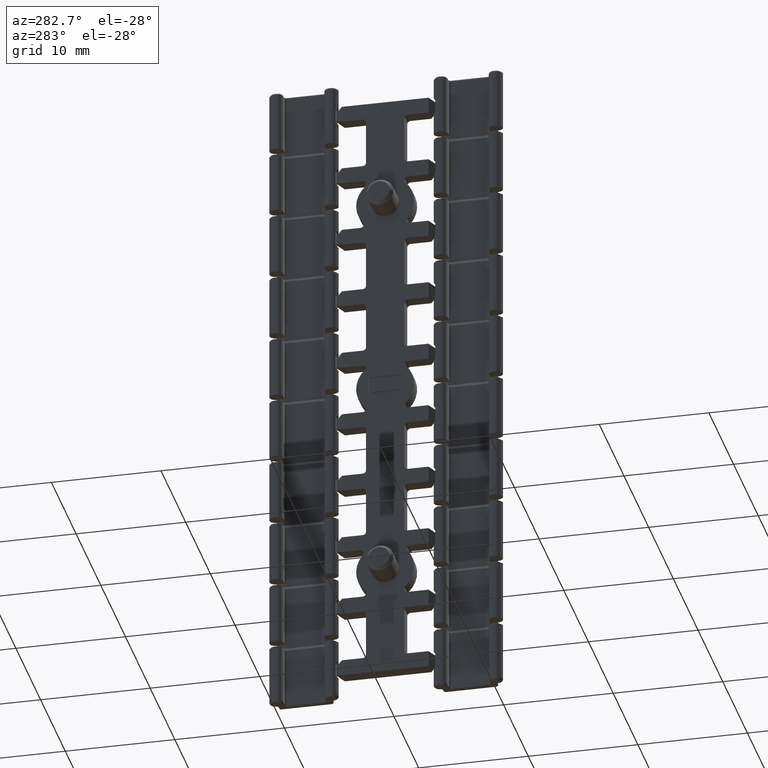
[diagram: clean part render]
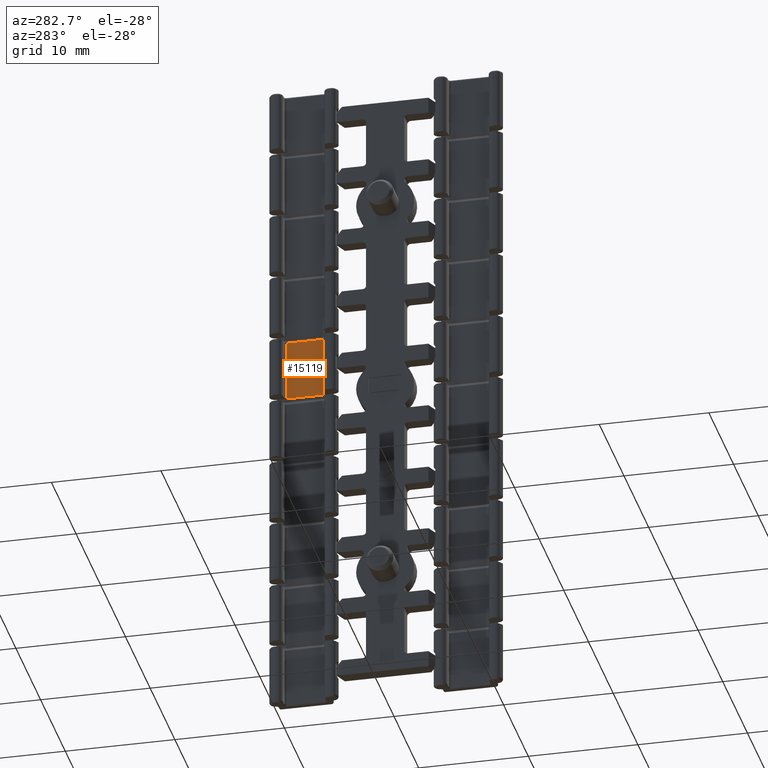
[diagram: same view with one face highlighted and labeled with its STEP entity id]
A machine part, auxiliary view. The second image highlights one B-rep face of the part: STEP entity #15119.
In plain terms, the highlighted planar face has unit normal (-1, -0, 0).
Its self-contained STEP definition (entity closure, byte-faithful):
#1936 = FACE_OUTER_BOUND ( 'NONE', #15117, .T. ) ;
#1940 = DIRECTION ( 'NONE',  ( -1.582853921550299100E-028, 6.123233995720649900E-017, -1.000000000000000000 ) ) ;
#1941 = VECTOR ( 'NONE', #1940, 1000.000000000000000 ) ;
#1942 = CARTESIAN_POINT ( 'NONE',  ( 47.81237692440182500, 109.2850000000000000, -34.85380093145749900 ) ) ;
#1957 = CARTESIAN_POINT ( 'NONE',  ( 47.81237692440060300, 157.4680127006220100, -34.85380093145749900 ) ) ;
#1959 = LINE ( 'NONE', #1942, #1941 ) ;
#1960 = AXIS2_PLACEMENT_3D ( 'NONE', #1957, #2014, #2013 ) ;
#1962 = LINE ( 'NONE', #2010, #2009 ) ;
#1970 = PLANE ( 'NONE',  #1960 ) ;
#1976 = CARTESIAN_POINT ( 'NONE',  ( 47.81237692440191700, 105.9350000000000000, 16.72119906854229800 ) ) ;
#2008 = DIRECTION ( 'NONE',  ( 1.551882100571859600E-028, 6.123233995752850200E-017, 1.000000000000000000 ) ) ;
#2009 = VECTOR ( 'NONE', #2008, 1000.000000000000000 ) ;
#2010 = CARTESIAN_POINT ( 'NONE',  ( 47.81237692440190300, 105.9350000000000000, 16.72119906854230500 ) ) ;
#2013 = DIRECTION ( 'NONE',  ( 2.529041108016070100E-014, -1.000000000000000000, 0.0000000000000000000 ) ) ;
#2014 = DIRECTION ( 'NONE',  ( -1.000000000000000000, -2.529041108016070100E-014, 1.567368011061120000E-028 ) ) ;
#2044 = LINE ( 'NONE', #2094, #2093 ) ;
#2092 = DIRECTION ( 'NONE',  ( -1.124819836994257000E-032, -1.000000000000000000, -6.123233995719869600E-017 ) ) ;
#2093 = VECTOR ( 'NONE', #2092, 1000.000000000000000 ) ;
#2094 = CARTESIAN_POINT ( 'NONE',  ( 47.81237692440180400, 107.6600000000000100, 16.72119906854230100 ) ) ;
#15098 = ORIENTED_EDGE ( 'NONE', *, *, #15168, .F. ) ;
#15099 = EDGE_CURVE ( 'NONE', #20540, #17731, #1959, .T. ) ;
#15115 = ORIENTED_EDGE ( 'NONE', *, *, #15099, .T. ) ;
#15116 = ORIENTED_EDGE ( 'NONE', *, *, #15120, .T. ) ;
#15117 = EDGE_LOOP ( 'NONE', ( #15122, #15116, #15098, #15115 ) ) ;
#15119 = ADVANCED_FACE ( 'NONE', ( #1936 ), #1970, .T. ) ;
#15120 = EDGE_CURVE ( 'NONE', #19477, #15123, #1962, .T. ) ;
#15122 = ORIENTED_EDGE ( 'NONE', *, *, #19536, .F. ) ;
#15123 = VERTEX_POINT ( 'NONE', #1976 ) ;
#15168 = EDGE_CURVE ( 'NONE', #20540, #15123, #2044, .T. ) ;
#17731 = VERTEX_POINT ( 'NONE', #29140 ) ;
#19477 = VERTEX_POINT ( 'NONE', #35728 ) ;
#19536 = EDGE_CURVE ( 'NONE', #19477, #17731, #35984, .T. ) ;
#20540 = VERTEX_POINT ( 'NONE', #39679 ) ;
#29140 = CARTESIAN_POINT ( 'NONE',  ( 47.81237692440184600, 109.2850000000000000, 11.12119906854218800 ) ) ;
#35728 = CARTESIAN_POINT ( 'NONE',  ( 47.81237692440190300, 105.9350000000000000, 11.12119906854219800 ) ) ;
#35954 = DIRECTION ( 'NONE',  ( 0.0000000000000000000, 1.000000000000000000, -1.642655475521470000E-028 ) ) ;
#35955 = VECTOR ( 'NONE', #35954, 1000.000000000000000 ) ;
#35957 = CARTESIAN_POINT ( 'NONE',  ( 47.81237692440190300, 110.7600000000000100, 11.12119906854219800 ) ) ;
#35984 = LINE ( 'NONE', #35957, #35955 ) ;
#39679 = CARTESIAN_POINT ( 'NONE',  ( 47.81237692440180400, 109.2850000000000000, 16.72119906854230100 ) ) ;